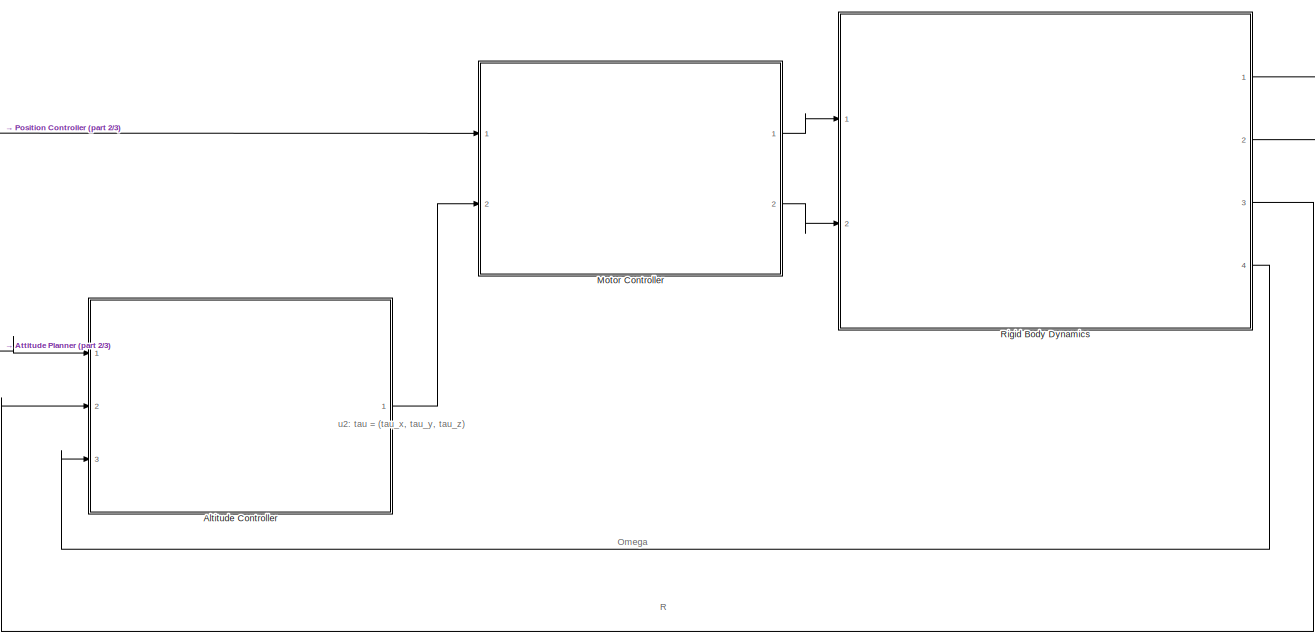
[diagram: root canvas - part 1/3, middle right region]
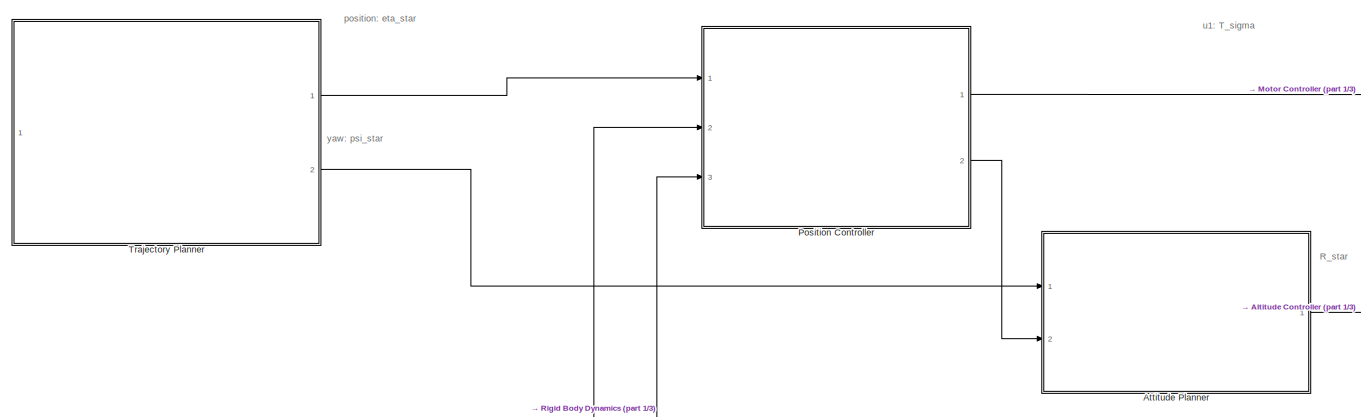
[diagram: root canvas - part 2/3, top left region]
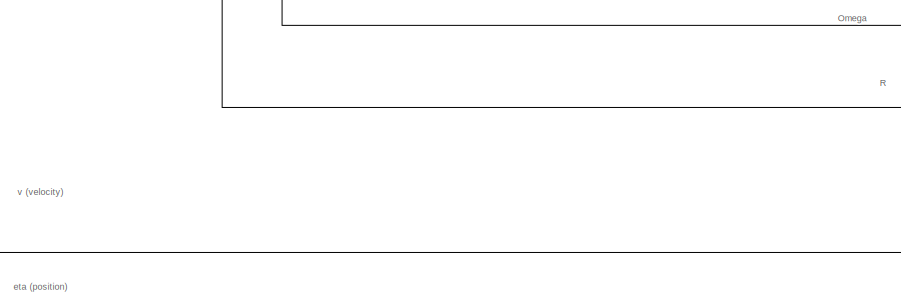
[diagram: root canvas - part 3/3, bottom center region]
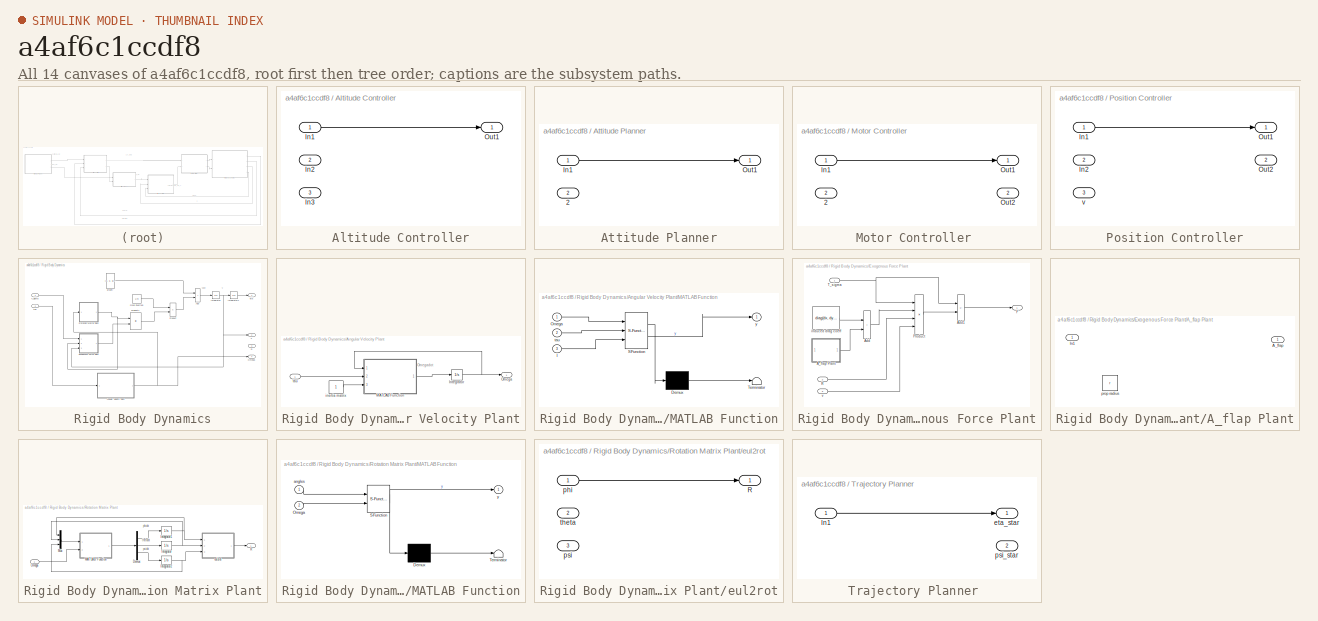
[diagram: thumbnail index - all 14 canvases of the model, root first then tree order]
MODEL slx_a4af6c1ccdf8
KIND model
CONFIG AbsTol = auto
CONFIG EnableMultiTasking = off
CONFIG FixedStep = auto
CONFIG MaxStep = auto
CONFIG MinStep = auto
CONFIG RelTol = 1e-3
CONFIG SampleTimeConstraint = Unconstrained
CONFIG SolverName = VariableStepAuto
CONFIG StartTime = 0.0
CONFIG StopTime = 10.0
BLOCK [SubSystem] Altitude Controller
  Ports = [3, 1]
  RequestExecContextInheritance = off
BLOCK [Inport] Altitude Controller/In1
BLOCK [Inport] Altitude Controller/In2
  Port = 2
BLOCK [Inport] Altitude Controller/In3
  Port = 3
BLOCK [Outport] Altitude Controller/Out1
BLOCK [SubSystem] Attitude Planner
  Ports = [2, 1]
  RequestExecContextInheritance = off
BLOCK [Inport] Attitude Planner/2
  Port = 2
BLOCK [Inport] Attitude Planner/In1
BLOCK [Outport] Attitude Planner/Out1
BLOCK [SubSystem] Motor Controller 
  Ports = [2, 2]
  RequestExecContextInheritance = off
BLOCK [Inport] Motor Controller /2
  Port = 2
BLOCK [Inport] Motor Controller /In1
BLOCK [Outport] Motor Controller /Out1
BLOCK [Outport] Motor Controller /Out2
  Port = 2
BLOCK [SubSystem] Position Controller
  Ports = [3, 2]
  RequestExecContextInheritance = off
BLOCK [Inport] Position Controller/In1
BLOCK [Inport] Position Controller/In2
  Port = 2
BLOCK [Outport] Position Controller/Out1
BLOCK [Outport] Position Controller/Out2
  Port = 2
BLOCK [Inport] Position Controller/v
  Port = 3
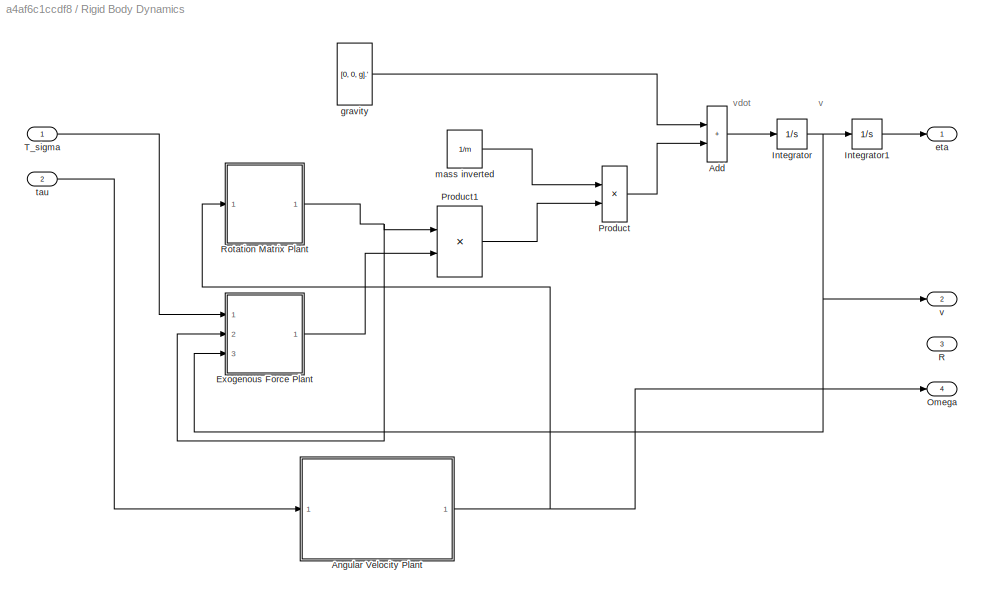
BLOCK [SubSystem] Rigid Body Dynamics
  Ports = [2, 4]
  RequestExecContextInheritance = off
BLOCK [Sum] Rigid Body Dynamics/Add
  IconShape = rectangular
  Ports = [2, 1]
BLOCK [SubSystem] Rigid Body Dynamics/Angular Velocity Plant
  Ports = [1, 1]
  RequestExecContextInheritance = off
BLOCK [Integrator] Rigid Body Dynamics/Angular Velocity Plant/Integrator
  Ports = [1, 1]
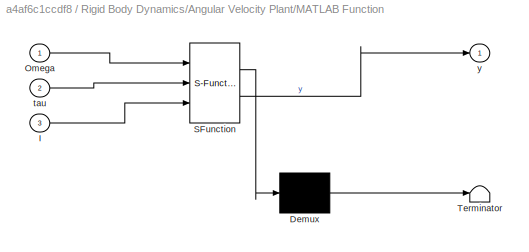
BLOCK [SubSystem] Rigid Body Dynamics/Angular Velocity Plant/MATLAB Function
  ErrorFcn = Stateflow.Translate.translate
  PermitHierarchicalResolution = ExplicitOnly
  Ports = [3, 1]
  RequestExecContextInheritance = off
  SFBlockType = MATLAB Function
  TreatAsAtomicUnit = on
BLOCK [Demux] Rigid Body Dynamics/Angular Velocity Plant/MATLAB Function/ Demux 
  Outputs = 1
  Ports = [1, 1]
BLOCK [S-Function] Rigid Body Dynamics/Angular Velocity Plant/MATLAB Function/ SFunction 
  EnableBusSupport = off
  FunctionName = sf_sfun
  PortCounts = [3 2]
  Ports = [3, 2]
  SFcnIsStateOwnerBlock = off
  SFunctionDeploymentMode = off
  Tag = Stateflow S-Function 1
BLOCK [Terminator] Rigid Body Dynamics/Angular Velocity Plant/MATLAB Function/ Terminator 
BLOCK [Inport] Rigid Body Dynamics/Angular Velocity Plant/MATLAB Function/I
  Port = 3
BLOCK [Inport] Rigid Body Dynamics/Angular Velocity Plant/MATLAB Function/Omega
BLOCK [Inport] Rigid Body Dynamics/Angular Velocity Plant/MATLAB Function/tau
  Port = 2
BLOCK [Outport] Rigid Body Dynamics/Angular Velocity Plant/MATLAB Function/y
BLOCK [Outport] Rigid Body Dynamics/Angular Velocity Plant/Omega
BLOCK [Constant] Rigid Body Dynamics/Angular Velocity Plant/inertia matrix
BLOCK [Inport] Rigid Body Dynamics/Angular Velocity Plant/tau
BLOCK [SubSystem] Rigid Body Dynamics/Exogenous Force Plant
  Ports = [3, 1]
  RequestExecContextInheritance = off
BLOCK [SubSystem] Rigid Body Dynamics/Exogenous Force Plant/A_flap Plant
  Ports = [1, 1]
  RequestExecContextInheritance = off
BLOCK [Outport] Rigid Body Dynamics/Exogenous Force Plant/A_flap Plant/A_flap
BLOCK [Inport] Rigid Body Dynamics/Exogenous Force Plant/A_flap Plant/In1
BLOCK [Constant] Rigid Body Dynamics/Exogenous Force Plant/A_flap Plant/prop radius
  Value = r
BLOCK [Sum] Rigid Body Dynamics/Exogenous Force Plant/Add
  IconShape = rectangular
  Ports = [2, 1]
BLOCK [Sum] Rigid Body Dynamics/Exogenous Force Plant/Add1
  IconShape = rectangular
  Inputs = +-
  Ports = [2, 1]
BLOCK [Outport] Rigid Body Dynamics/Exogenous Force Plant/F
BLOCK [Product] Rigid Body Dynamics/Exogenous Force Plant/Product
  Inputs = 4
  Ports = [4, 1]
BLOCK [Inport] Rigid Body Dynamics/Exogenous Force Plant/R
  Port = 2
BLOCK [Inport] Rigid Body Dynamics/Exogenous Force Plant/T_sigma
BLOCK [Constant] Rigid Body Dynamics/Exogenous Force Plant/induced drag coeff
  Value = diag(dx, dy, 0)
  VectorParams1D = off
BLOCK [Inport] Rigid Body Dynamics/Exogenous Force Plant/v
  Port = 3
BLOCK [Integrator] Rigid Body Dynamics/Integrator
  Ports = [1, 1]
BLOCK [Integrator] Rigid Body Dynamics/Integrator1
  Ports = [1, 1]
BLOCK [Outport] Rigid Body Dynamics/Omega
  Port = 4
BLOCK [Product] Rigid Body Dynamics/Product
  Ports = [2, 1]
BLOCK [Product] Rigid Body Dynamics/Product1
  Multiplication = Matrix(*)
  Ports = [2, 1]
BLOCK [Outport] Rigid Body Dynamics/R
  Port = 3
BLOCK [SubSystem] Rigid Body Dynamics/Rotation Matrix Plant
  Ports = [1, 1]
  RequestExecContextInheritance = off
BLOCK [Demux] Rigid Body Dynamics/Rotation Matrix Plant/Demux
  Outputs = 3
  Ports = [1, 3]
BLOCK [Integrator] Rigid Body Dynamics/Rotation Matrix Plant/Integrator
  Ports = [1, 1]
BLOCK [Integrator] Rigid Body Dynamics/Rotation Matrix Plant/Integrator1
  Ports = [1, 1]
BLOCK [Integrator] Rigid Body Dynamics/Rotation Matrix Plant/Integrator2
  Ports = [1, 1]
BLOCK [SubSystem] Rigid Body Dynamics/Rotation Matrix Plant/MATLAB Function
  ErrorFcn = Stateflow.Translate.translate
  PermitHierarchicalResolution = ExplicitOnly
  Ports = [2, 1]
  RequestExecContextInheritance = off
  SFBlockType = MATLAB Function
  TreatAsAtomicUnit = on
BLOCK [Demux] Rigid Body Dynamics/Rotation Matrix Plant/MATLAB Function/ Demux 
  Outputs = 1
  Ports = [1, 1]
BLOCK [S-Function] Rigid Body Dynamics/Rotation Matrix Plant/MATLAB Function/ SFunction 
  EnableBusSupport = off
  FunctionName = sf_sfun
  PortCounts = [2 2]
  Ports = [2, 2]
  SFcnIsStateOwnerBlock = off
  SFunctionDeploymentMode = off
  Tag = Stateflow S-Function 2
BLOCK [Terminator] Rigid Body Dynamics/Rotation Matrix Plant/MATLAB Function/ Terminator 
BLOCK [Inport] Rigid Body Dynamics/Rotation Matrix Plant/MATLAB Function/Omega
  Port = 2
BLOCK [Inport] Rigid Body Dynamics/Rotation Matrix Plant/MATLAB Function/angles
BLOCK [Outport] Rigid Body Dynamics/Rotation Matrix Plant/MATLAB Function/y
BLOCK [Mux] Rigid Body Dynamics/Rotation Matrix Plant/Mux
  DisplayOption = bar
  Inputs = 3
  Ports = [3, 1]
BLOCK [Inport] Rigid Body Dynamics/Rotation Matrix Plant/Omega
BLOCK [Outport] Rigid Body Dynamics/Rotation Matrix Plant/R
BLOCK [SubSystem] Rigid Body Dynamics/Rotation Matrix Plant/eul2rot
  Ports = [3, 1]
  RequestExecContextInheritance = off
BLOCK [Outport] Rigid Body Dynamics/Rotation Matrix Plant/eul2rot/R
BLOCK [Inport] Rigid Body Dynamics/Rotation Matrix Plant/eul2rot/phi
BLOCK [Inport] Rigid Body Dynamics/Rotation Matrix Plant/eul2rot/psi
  Port = 3
BLOCK [Inport] Rigid Body Dynamics/Rotation Matrix Plant/eul2rot/theta
  Port = 2
BLOCK [Inport] Rigid Body Dynamics/T_sigma
BLOCK [Outport] Rigid Body Dynamics/eta
BLOCK [Constant] Rigid Body Dynamics/gravity
  Value = [0, 0, g].'
  VectorParams1D = off
BLOCK [Constant] Rigid Body Dynamics/mass inverted
  Value = 1/m
BLOCK [Inport] Rigid Body Dynamics/tau
  Port = 2
BLOCK [Outport] Rigid Body Dynamics/v
  Port = 2
BLOCK [SubSystem] Trajectory Planner 
  Ports = [1, 2]
  RequestExecContextInheritance = off
BLOCK [Inport] Trajectory Planner /In1
BLOCK [Outport] Trajectory Planner /eta_star
BLOCK [Outport] Trajectory Planner /psi_star
  Port = 2
ANNOTATION (root): Omega
ANNOTATION (root): R
ANNOTATION (root): R_star
ANNOTATION (root): eta (position)
ANNOTATION (root): position: eta_star
ANNOTATION (root): u1: T_sigma
ANNOTATION (root): u2: tau = (tau_x, tau_y, tau_z)
ANNOTATION (root): v (velocity)
ANNOTATION (root): yaw: psi_star
ANNOTATION Rigid Body Dynamics: v
ANNOTATION Rigid Body Dynamics: vdot
ANNOTATION Rigid Body Dynamics/Angular Velocity Plant: Omegadot
ANNOTATION Rigid Body Dynamics/Rotation Matrix Plant: phidot
ANNOTATION Rigid Body Dynamics/Rotation Matrix Plant: psidot
ANNOTATION Rigid Body Dynamics/Rotation Matrix Plant: thetadot
LINE Altitude Controller/In1:1 -> Altitude Controller/Out1:1
LINE Altitude Controller:1 -> Motor Controller :2
LINE Attitude Planner/In1:1 -> Attitude Planner/Out1:1
LINE Attitude Planner:1 -> Altitude Controller:1
LINE Motor Controller /In1:1 -> Motor Controller /Out1:1
LINE Motor Controller :1 -> Rigid Body Dynamics:1
LINE Motor Controller :2 -> Rigid Body Dynamics:2
LINE Position Controller/In1:1 -> Position Controller/Out1:1
LINE Position Controller:1 -> Motor Controller :1
LINE Position Controller:2 -> Attitude Planner:2
LINE Rigid Body Dynamics/Add:1 -> Rigid Body Dynamics/Integrator:1
NET Rigid Body Dynamics/Angular Velocity Plant/Integrator:1 -> Rigid Body Dynamics/Angular Velocity Plant/MATLAB Function:1, Rigid Body Dynamics/Angular Velocity Plant/Omega:1
LINE Rigid Body Dynamics/Angular Velocity Plant/MATLAB Function:1 -> Rigid Body Dynamics/Angular Velocity Plant/Integrator:1
LINE Rigid Body Dynamics/Angular Velocity Plant/inertia matrix:1 -> Rigid Body Dynamics/Angular Velocity Plant/MATLAB Function:3
LINE Rigid Body Dynamics/Angular Velocity Plant/tau:1 -> Rigid Body Dynamics/Angular Velocity Plant/MATLAB Function:2
NET Rigid Body Dynamics/Angular Velocity Plant:1 -> Rigid Body Dynamics/Omega:1, Rigid Body Dynamics/Rotation Matrix Plant:1
LINE Rigid Body Dynamics/Exogenous Force Plant/A_flap Plant:1 -> Rigid Body Dynamics/Exogenous Force Plant/Add:2
LINE Rigid Body Dynamics/Exogenous Force Plant/Add1:1 -> Rigid Body Dynamics/Exogenous Force Plant/F:1
LINE Rigid Body Dynamics/Exogenous Force Plant/Add:1 -> Rigid Body Dynamics/Exogenous Force Plant/Product:2
LINE Rigid Body Dynamics/Exogenous Force Plant/Product:1 -> Rigid Body Dynamics/Exogenous Force Plant/Add1:2
LINE Rigid Body Dynamics/Exogenous Force Plant/R:1 -> Rigid Body Dynamics/Exogenous Force Plant/Product:3
NET Rigid Body Dynamics/Exogenous Force Plant/T_sigma:1 -> Rigid Body Dynamics/Exogenous Force Plant/Add1:1, Rigid Body Dynamics/Exogenous Force Plant/Product:1
LINE Rigid Body Dynamics/Exogenous Force Plant/induced drag coeff:1 -> Rigid Body Dynamics/Exogenous Force Plant/Add:1
LINE Rigid Body Dynamics/Exogenous Force Plant/v:1 -> Rigid Body Dynamics/Exogenous Force Plant/Product:4
LINE Rigid Body Dynamics/Exogenous Force Plant:1 -> Rigid Body Dynamics/Product1:2
LINE Rigid Body Dynamics/Integrator1:1 -> Rigid Body Dynamics/eta:1
NET Rigid Body Dynamics/Integrator:1 -> Rigid Body Dynamics/Exogenous Force Plant:3, Rigid Body Dynamics/Integrator1:1, Rigid Body Dynamics/v:1
LINE Rigid Body Dynamics/Product1:1 -> Rigid Body Dynamics/Product:2
LINE Rigid Body Dynamics/Product:1 -> Rigid Body Dynamics/Add:2
LINE Rigid Body Dynamics/Rotation Matrix Plant/Demux:1 -> Rigid Body Dynamics/Rotation Matrix Plant/Integrator1:1
LINE Rigid Body Dynamics/Rotation Matrix Plant/Demux:2 -> Rigid Body Dynamics/Rotation Matrix Plant/Integrator:1
LINE Rigid Body Dynamics/Rotation Matrix Plant/Demux:3 -> Rigid Body Dynamics/Rotation Matrix Plant/Integrator2:1
NET Rigid Body Dynamics/Rotation Matrix Plant/Integrator1:1 -> Rigid Body Dynamics/Rotation Matrix Plant/Mux:1, Rigid Body Dynamics/Rotation Matrix Plant/eul2rot:1
NET Rigid Body Dynamics/Rotation Matrix Plant/Integrator2:1 -> Rigid Body Dynamics/Rotation Matrix Plant/Mux:3, Rigid Body Dynamics/Rotation Matrix Plant/eul2rot:3
NET Rigid Body Dynamics/Rotation Matrix Plant/Integrator:1 -> Rigid Body Dynamics/Rotation Matrix Plant/Mux:2, Rigid Body Dynamics/Rotation Matrix Plant/eul2rot:2
LINE Rigid Body Dynamics/Rotation Matrix Plant/MATLAB Function:1 -> Rigid Body Dynamics/Rotation Matrix Plant/Demux:1
LINE Rigid Body Dynamics/Rotation Matrix Plant/Mux:1 -> Rigid Body Dynamics/Rotation Matrix Plant/MATLAB Function:1
LINE Rigid Body Dynamics/Rotation Matrix Plant/Omega:1 -> Rigid Body Dynamics/Rotation Matrix Plant/MATLAB Function:2
LINE Rigid Body Dynamics/Rotation Matrix Plant/eul2rot/phi:1 -> Rigid Body Dynamics/Rotation Matrix Plant/eul2rot/R:1
LINE Rigid Body Dynamics/Rotation Matrix Plant/eul2rot:1 -> Rigid Body Dynamics/Rotation Matrix Plant/R:1
NET Rigid Body Dynamics/Rotation Matrix Plant:1 -> Rigid Body Dynamics/Exogenous Force Plant:2, Rigid Body Dynamics/Product1:1
LINE Rigid Body Dynamics/T_sigma:1 -> Rigid Body Dynamics/Exogenous Force Plant:1
LINE Rigid Body Dynamics/gravity:1 -> Rigid Body Dynamics/Add:1
LINE Rigid Body Dynamics/mass inverted:1 -> Rigid Body Dynamics/Product:1
LINE Rigid Body Dynamics/tau:1 -> Rigid Body Dynamics/Angular Velocity Plant:1
LINE Rigid Body Dynamics:1 -> Position Controller:2
LINE Rigid Body Dynamics:2 -> Position Controller:3
LINE Rigid Body Dynamics:3 -> Altitude Controller:2
LINE Rigid Body Dynamics:4 -> Altitude Controller:3
LINE Trajectory Planner /In1:1 -> Trajectory Planner /eta_star:1
LINE Trajectory Planner :1 -> Position Controller:1
LINE Trajectory Planner :2 -> Attitude Planner:1
note: NET lines group one-source signal fan-out (src -> all destinations, sorted); 1:1 wires keep LINE
CHART Rigid Body Dynamics/Rotation Matrix Plant/MATLAB Function states=1 transitions=1
  STATE_LABEL 'eML_blk_kernel()'
  STATE_LABEL 'SCRIPT:\nfunction y = fcn(angles, Omega)\n\ny = u;\n'
CHART Rigid Body Dynamics/Angular Velocity Plant/MATLAB Function states=1 transitions=1
  STATE_LABEL 'eML_blk_kernel()'
  STATE_LABEL 'SCRIPT:\nfunction y = fcn(Omega, tau, I)\n\ny = u;\n'
CHART  states=0 transitions=0
CHART  states=0 transitions=0
